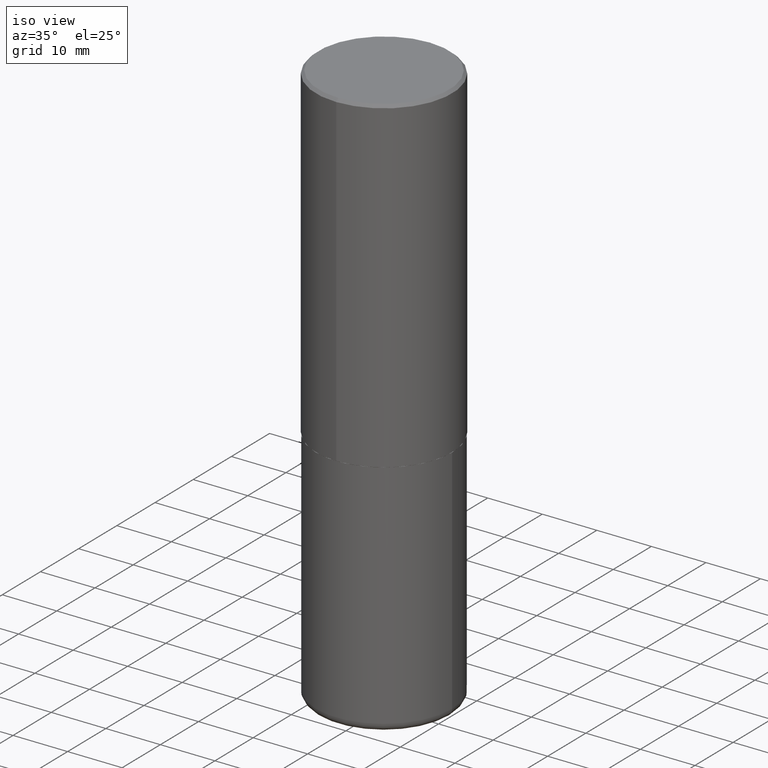
[diagram: clean part render]
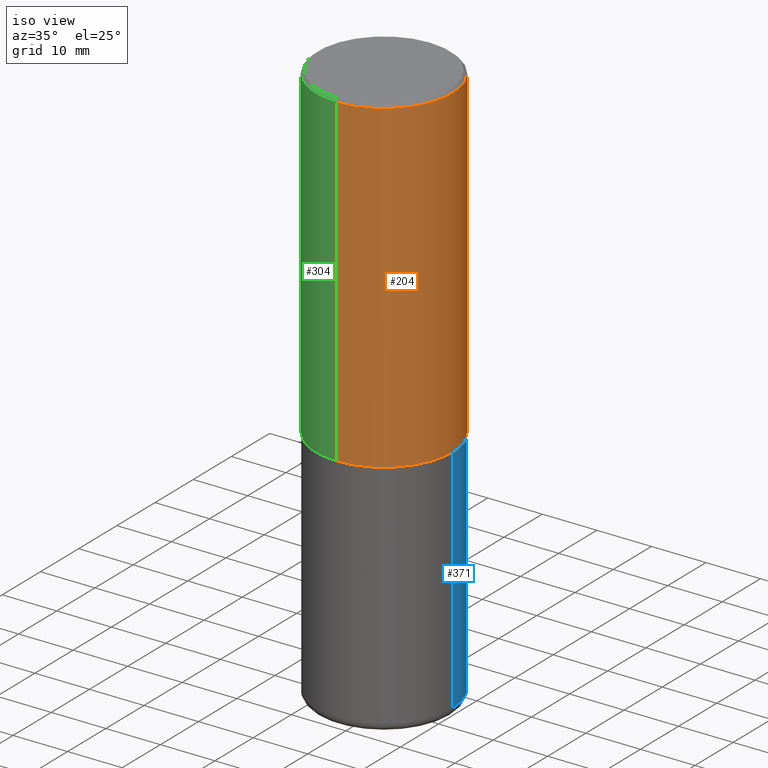
[diagram: same view with three faces highlighted in distinct colors, each labeled with its STEP entity id]
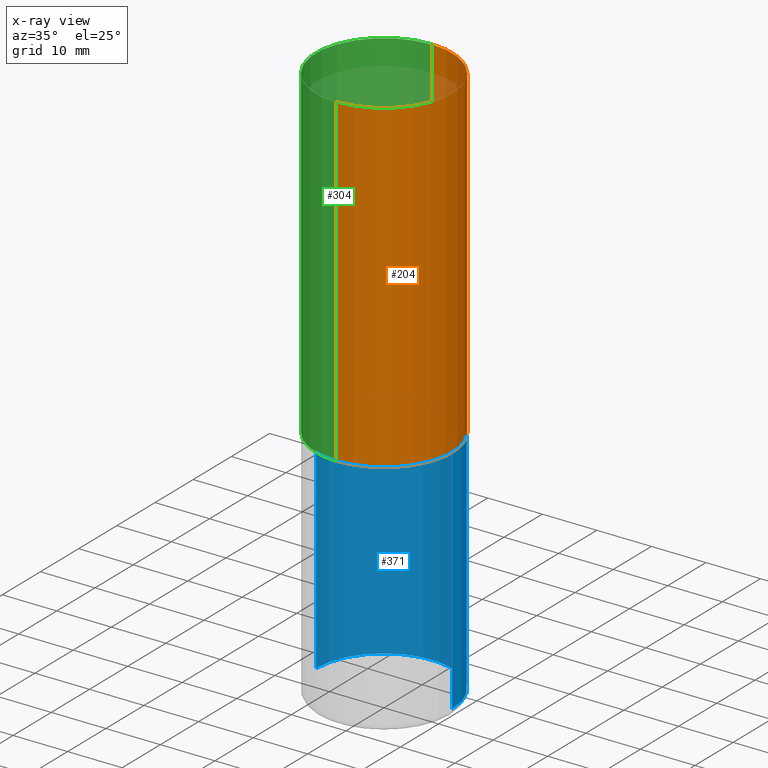
[diagram: x-ray of the same camera — body ghosted, the three highlighted faces saturated]
A machine part, iso view with three faces highlighted in distinct colors.
The next image is the same camera in x-ray (body ghosted, the three faces saturated) — at least one of them is partly hidden behind the body in this view.
Their STEP definitions:

[orange] entity #204 — the highlighted cylindrical surface (partial cylindrical patch) has radius 12.5006 mm, axis along (-0, 0, 1).
#3 = VERTEX_POINT ( 'NONE', #335 ) ;
#4 = DIRECTION ( 'NONE',  ( -6.982962677686266711E-15, -1.000000000000000000, 3.330506545156064285E-15 ) ) ;
#13 = EDGE_CURVE ( 'NONE', #225, #255, #57, .T. ) ;
#29 = CIRCLE ( 'NONE', #133, 0.4921500000000002539 ) ;
#57 = LINE ( 'NONE', #101, #247 ) ;
#80 = DIRECTION ( 'NONE',  ( -2.443455779928216306E-29, 3.494364107017394518E-15, 1.000000000000000000 ) ) ;
#83 = DIRECTION ( 'NONE',  ( -2.443455779928216306E-29, 3.494364107017394124E-15, 1.000000000000000000 ) ) ;
#99 = DIRECTION ( 'NONE',  ( -2.443455779928216306E-29, 3.494364107017394124E-15, 1.000000000000000000 ) ) ;
#101 = CARTESIAN_POINT ( 'NONE',  ( -3.436665081823296565E-15, -0.4921500000000000874, 1.719751295268611036E-15 ) ) ;
#129 = LINE ( 'NONE', #161, #404 ) ;
#133 = AXIS2_PLACEMENT_3D ( 'NONE', #269, #80, #4 ) ;
#137 = EDGE_CURVE ( 'NONE', #225, #3, #29, .T. ) ;
#141 = ORIENTED_EDGE ( 'NONE', *, *, #137, .T. ) ;
#144 = EDGE_CURVE ( 'NONE', #255, #345, #356, .T. ) ;
#145 = AXIS2_PLACEMENT_3D ( 'NONE', #146, #396, #328 ) ;
#146 = CARTESIAN_POINT ( 'NONE',  ( 4.886911559856459377E-31, -6.988728214034825176E-17, -0.02000000000000010797 ) ) ;
#153 = ORIENTED_EDGE ( 'NONE', *, *, #144, .F. ) ;
#161 = CARTESIAN_POINT ( 'NONE',  ( 3.496936074043333291E-15, 0.4921500000000000874, -1.719751295268611036E-15 ) ) ;
#179 = AXIS2_PLACEMENT_3D ( 'NONE', #341, #251, #217 ) ;
#196 = CARTESIAN_POINT ( 'NONE',  ( -3.376394089603258262E-15, -0.4921500000000000319, -0.01999999999999838712 ) ) ;
#204 = ADVANCED_FACE ( 'NONE', ( #253 ), #378, .T. ) ;
#214 = EDGE_CURVE ( 'NONE', #3, #345, #129, .T. ) ;
#217 = DIRECTION ( 'NONE',  ( -6.982962677686265922E-15, -1.000000000000000000, 3.494364107017394518E-15 ) ) ;
#219 = CARTESIAN_POINT ( 'NONE',  ( -3.436665081823239768E-15, -0.4921500000000085251, -2.361199999999998411 ) ) ;
#225 = VERTEX_POINT ( 'NONE', #219 ) ;
#241 = ORIENTED_EDGE ( 'NONE', *, *, #13, .F. ) ;
#247 = VECTOR ( 'NONE', #83, 39.37007874015748143 ) ;
#251 = DIRECTION ( 'NONE',  ( -2.443455779928216306E-29, 3.494364107017394518E-15, 1.000000000000000000 ) ) ;
#253 = FACE_OUTER_BOUND ( 'NONE', #386, .T. ) ;
#255 = VERTEX_POINT ( 'NONE', #196 ) ;
#269 = CARTESIAN_POINT ( 'NONE',  ( 5.769487787566505932E-29, -8.250892529489472680E-15, -2.361200000000000188 ) ) ;
#328 = DIRECTION ( 'NONE',  ( -6.982962677686265922E-15, -1.000000000000000000, 3.495297233588267464E-15 ) ) ;
#335 = CARTESIAN_POINT ( 'NONE',  ( 3.496936074043363268E-15, 0.4921499999999920383, -2.361200000000001964 ) ) ;
#336 = CARTESIAN_POINT ( 'NONE',  ( 3.436665081823296171E-15, 0.4921499999999999209, -0.02000000000000182535 ) ) ;
#341 = CARTESIAN_POINT ( 'NONE',  ( 0.000000000000000000, 0.000000000000000000, 0.000000000000000000 ) ) ;
#345 = VERTEX_POINT ( 'NONE', #336 ) ;
#356 = CIRCLE ( 'NONE', #145, 0.4921499999999999764 ) ;
#378 = CYLINDRICAL_SURFACE ( 'NONE', #179, 0.4921500000000000874 ) ;
#386 = EDGE_LOOP ( 'NONE', ( #141, #390, #153, #241 ) ) ;
#390 = ORIENTED_EDGE ( 'NONE', *, *, #214, .T. ) ;
#396 = DIRECTION ( 'NONE',  ( -2.443455779928216306E-29, 3.494364107017394518E-15, 1.000000000000000000 ) ) ;
#404 = VECTOR ( 'NONE', #99, 39.37007874015748143 ) ;

[blue] entity #371 — the highlighted cylindrical surface (partial cylindrical patch) has radius 12.5006 mm, axis along (-0, 0, 1).
#8 = DIRECTION ( 'NONE',  ( -2.445468806185136597E-29, 3.491481338843145583E-15, 1.000000000000000000 ) ) ;
#15 = ORIENTED_EDGE ( 'NONE', *, *, #412, .T. ) ;
#19 = CARTESIAN_POINT ( 'NONE',  ( 0.4921499999999999764, -3.436665081823295777E-15, 2.399810400207969603E-29 ) ) ;
#23 = VECTOR ( 'NONE', #39, 39.37007874015748143 ) ;
#39 = DIRECTION ( 'NONE',  ( -2.445468806185136877E-29, 3.491481338843145188E-15, 1.000000000000000000 ) ) ;
#45 = CIRCLE ( 'NONE', #85, 0.4921499999999999764 ) ;
#49 = CARTESIAN_POINT ( 'NONE',  ( -0.4921500000000000319, -1.059014368378710651E-14, -4.034700000000000841 ) ) ;
#52 = LINE ( 'NONE', #19, #249 ) ;
#68 = EDGE_CURVE ( 'NONE', #288, #175, #45, .T. ) ;
#85 = AXIS2_PLACEMENT_3D ( 'NONE', #237, #8, #109 ) ;
#86 = AXIS2_PLACEMENT_3D ( 'NONE', #194, #316, #373 ) ;
#107 = CARTESIAN_POINT ( 'NONE',  ( -0.4921499999999999764, 3.496936074043332897E-15, -2.420853904668951509E-29 ) ) ;
#109 = DIRECTION ( 'NONE',  ( 1.000000000000000000, -6.982962677686265922E-15, 0.000000000000000000 ) ) ;
#116 = ORIENTED_EDGE ( 'NONE', *, *, #124, .F. ) ;
#124 = EDGE_CURVE ( 'NONE', #418, #411, #414, .T. ) ;
#135 = EDGE_LOOP ( 'NONE', ( #136, #15, #116, #243 ) ) ;
#136 = ORIENTED_EDGE ( 'NONE', *, *, #68, .T. ) ;
#143 = DIRECTION ( 'NONE',  ( 1.000000000000000000, -6.982962677686263555E-15, 0.000000000000000000 ) ) ;
#158 = AXIS2_PLACEMENT_3D ( 'NONE', #201, #293, #143 ) ;
#160 = CARTESIAN_POINT ( 'NONE',  ( 0.4921500000000000319, -1.752374483965373598E-14, -4.034700000000000841 ) ) ;
#175 = VERTEX_POINT ( 'NONE', #49 ) ;
#183 = FACE_OUTER_BOUND ( 'NONE', #135, .T. ) ;
#194 = CARTESIAN_POINT ( 'NONE',  ( 0.000000000000000000, 0.000000000000000000, 0.000000000000000000 ) ) ;
#197 = LINE ( 'NONE', #107, #23 ) ;
#201 = CARTESIAN_POINT ( 'NONE',  ( 5.776686413970530874E-29, -8.247577218615279626E-15, -2.362200000000000077 ) ) ;
#237 = CARTESIAN_POINT ( 'NONE',  ( 9.866732992315171563E-29, -1.408707975783044020E-14, -4.034700000000000841 ) ) ;
#243 = ORIENTED_EDGE ( 'NONE', *, *, #357, .F. ) ;
#249 = VECTOR ( 'NONE', #391, 39.37007874015748143 ) ;
#278 = CYLINDRICAL_SURFACE ( 'NONE', #86, 0.4921499999999999764 ) ;
#288 = VERTEX_POINT ( 'NONE', #160 ) ;
#293 = DIRECTION ( 'NONE',  ( -2.445468806185136597E-29, 3.491481338843145583E-15, 1.000000000000000000 ) ) ;
#316 = DIRECTION ( 'NONE',  ( -2.445468806185136597E-29, 3.491481338843145583E-15, 1.000000000000000000 ) ) ;
#354 = CARTESIAN_POINT ( 'NONE',  ( 0.4921499999999999764, -1.168424230043857383E-14, -2.362200000000000077 ) ) ;
#357 = EDGE_CURVE ( 'NONE', #288, #418, #52, .T. ) ;
#371 = ADVANCED_FACE ( 'NONE', ( #183 ), #278, .T. ) ;
#373 = DIRECTION ( 'NONE',  ( 1.000000000000000000, -6.982962677686265922E-15, 4.876176775795935793E-29 ) ) ;
#391 = DIRECTION ( 'NONE',  ( -2.445468806185136877E-29, 3.491481338843145188E-15, 1.000000000000000000 ) ) ;
#411 = VERTEX_POINT ( 'NONE', #413 ) ;
#412 = EDGE_CURVE ( 'NONE', #175, #411, #197, .T. ) ;
#413 = CARTESIAN_POINT ( 'NONE',  ( -0.4921499999999999764, -7.670392414179527805E-15, -2.362200000000000077 ) ) ;
#414 = CIRCLE ( 'NONE', #158, 0.4921499999999999764 ) ;
#418 = VERTEX_POINT ( 'NONE', #354 ) ;

[green] entity #304 — the highlighted cylindrical surface (partial cylindrical patch) has radius 12.5006 mm, axis along (-0, 0, 1).
#3 = VERTEX_POINT ( 'NONE', #335 ) ;
#10 = EDGE_CURVE ( 'NONE', #3, #225, #313, .T. ) ;
#13 = EDGE_CURVE ( 'NONE', #225, #255, #57, .T. ) ;
#20 = DIRECTION ( 'NONE',  ( -2.443455779928216306E-29, 3.494364107017394518E-15, 1.000000000000000000 ) ) ;
#21 = AXIS2_PLACEMENT_3D ( 'NONE', #63, #20, #25 ) ;
#25 = DIRECTION ( 'NONE',  ( -6.982962677686265922E-15, -1.000000000000000000, 3.495297233588267464E-15 ) ) ;
#55 = AXIS2_PLACEMENT_3D ( 'NONE', #276, #89, #338 ) ;
#57 = LINE ( 'NONE', #101, #247 ) ;
#58 = CYLINDRICAL_SURFACE ( 'NONE', #366, 0.4921500000000000874 ) ;
#63 = CARTESIAN_POINT ( 'NONE',  ( 4.886911559856459377E-31, -6.988728214034825176E-17, -0.02000000000000010797 ) ) ;
#83 = DIRECTION ( 'NONE',  ( -2.443455779928216306E-29, 3.494364107017394124E-15, 1.000000000000000000 ) ) ;
#89 = DIRECTION ( 'NONE',  ( -2.443455779928216306E-29, 3.494364107017394518E-15, 1.000000000000000000 ) ) ;
#95 = ORIENTED_EDGE ( 'NONE', *, *, #214, .F. ) ;
#99 = DIRECTION ( 'NONE',  ( -2.443455779928216306E-29, 3.494364107017394124E-15, 1.000000000000000000 ) ) ;
#101 = CARTESIAN_POINT ( 'NONE',  ( -3.436665081823296565E-15, -0.4921500000000000874, 1.719751295268611036E-15 ) ) ;
#108 = ORIENTED_EDGE ( 'NONE', *, *, #10, .T. ) ;
#129 = LINE ( 'NONE', #161, #404 ) ;
#161 = CARTESIAN_POINT ( 'NONE',  ( 3.496936074043333291E-15, 0.4921500000000000874, -1.719751295268611036E-15 ) ) ;
#186 = ORIENTED_EDGE ( 'NONE', *, *, #13, .T. ) ;
#189 = CARTESIAN_POINT ( 'NONE',  ( 0.000000000000000000, 0.000000000000000000, 0.000000000000000000 ) ) ;
#196 = CARTESIAN_POINT ( 'NONE',  ( -3.376394089603258262E-15, -0.4921500000000000319, -0.01999999999999838712 ) ) ;
#214 = EDGE_CURVE ( 'NONE', #3, #345, #129, .T. ) ;
#219 = CARTESIAN_POINT ( 'NONE',  ( -3.436665081823239768E-15, -0.4921500000000085251, -2.361199999999998411 ) ) ;
#225 = VERTEX_POINT ( 'NONE', #219 ) ;
#247 = VECTOR ( 'NONE', #83, 39.37007874015748143 ) ;
#255 = VERTEX_POINT ( 'NONE', #196 ) ;
#264 = ORIENTED_EDGE ( 'NONE', *, *, #283, .F. ) ;
#276 = CARTESIAN_POINT ( 'NONE',  ( 5.769487787566505932E-29, -8.250892529489472680E-15, -2.361200000000000188 ) ) ;
#283 = EDGE_CURVE ( 'NONE', #345, #255, #395, .T. ) ;
#304 = ADVANCED_FACE ( 'NONE', ( #370 ), #58, .T. ) ;
#311 = DIRECTION ( 'NONE',  ( -2.443455779928216306E-29, 3.494364107017394518E-15, 1.000000000000000000 ) ) ;
#313 = CIRCLE ( 'NONE', #55, 0.4921500000000002539 ) ;
#317 = EDGE_LOOP ( 'NONE', ( #95, #108, #186, #264 ) ) ;
#335 = CARTESIAN_POINT ( 'NONE',  ( 3.496936074043363268E-15, 0.4921499999999920383, -2.361200000000001964 ) ) ;
#336 = CARTESIAN_POINT ( 'NONE',  ( 3.436665081823296171E-15, 0.4921499999999999209, -0.02000000000000182535 ) ) ;
#338 = DIRECTION ( 'NONE',  ( -6.982962677686266711E-15, -1.000000000000000000, 3.330506545156064285E-15 ) ) ;
#345 = VERTEX_POINT ( 'NONE', #336 ) ;
#366 = AXIS2_PLACEMENT_3D ( 'NONE', #189, #311, #405 ) ;
#370 = FACE_OUTER_BOUND ( 'NONE', #317, .T. ) ;
#395 = CIRCLE ( 'NONE', #21, 0.4921499999999999764 ) ;
#404 = VECTOR ( 'NONE', #99, 39.37007874015748143 ) ;
#405 = DIRECTION ( 'NONE',  ( -6.982962677686265922E-15, -1.000000000000000000, 3.494364107017394518E-15 ) ) ;